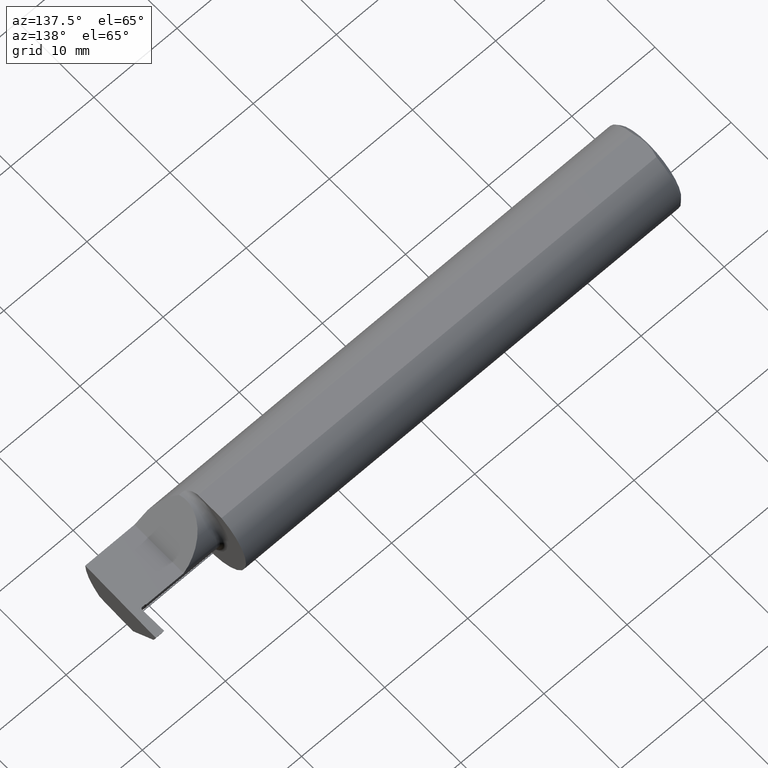
[diagram: clean part render]
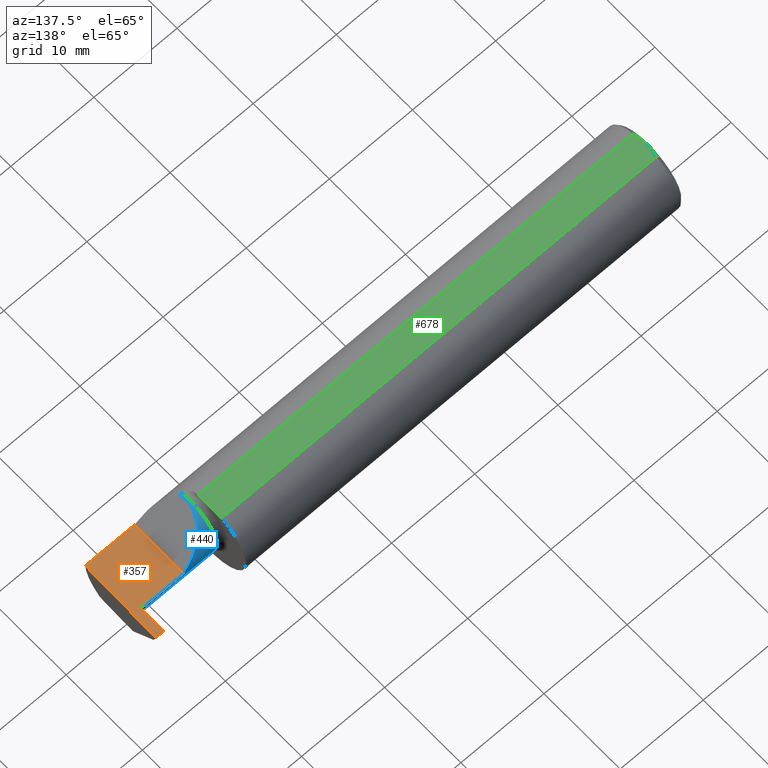
[diagram: same view with three faces highlighted in distinct colors, each labeled with its STEP entity id]
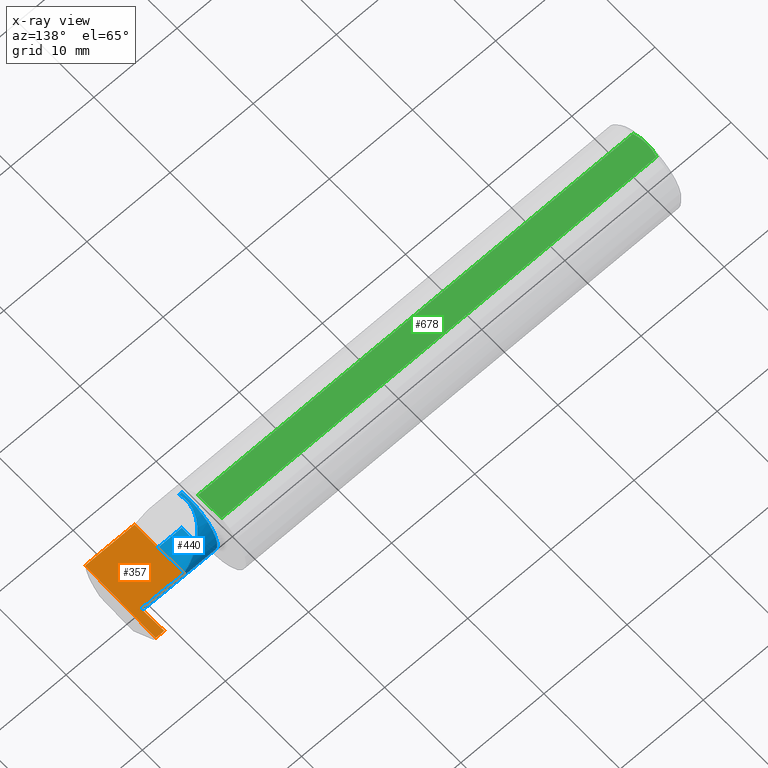
[diagram: x-ray of the same camera — body ghosted, the three highlighted faces saturated]
A machine part, auxiliary view with three faces highlighted in distinct colors.
The next image is the same camera in x-ray (body ghosted, the three faces saturated) — at least one of them is partly hidden behind the body in this view.
Their STEP definitions:

[orange] entity #357 — the highlighted planar face has unit normal (-0, 0, -1).
#25 = CARTESIAN_POINT ( 'NONE',  ( 2.493506715846705468, -0.1873499999999999888, 0.000000000000000000 ) ) ;
#53 = ORIENTED_EDGE ( 'NONE', *, *, #241, .F. ) ;
#70 = VECTOR ( 'NONE', #655, 39.37007874015748143 ) ;
#79 = DIRECTION ( 'NONE',  ( -1.000000000000000000, 0.000000000000000000, 1.224646799147353700E-16 ) ) ;
#83 = VECTOR ( 'NONE', #107, 39.37007874015748143 ) ;
#107 = DIRECTION ( 'NONE',  ( -1.000000000000000000, -0.000000000000000000, -0.000000000000000000 ) ) ;
#128 = CARTESIAN_POINT ( 'NONE',  ( 2.500000000000000000, 0.1846500000000000363, 0.000000000000000000 ) ) ;
#132 = DIRECTION ( 'NONE',  ( -0.01745240643727703073, -0.9998476951563912696, 0.000000000000000000 ) ) ;
#136 = CARTESIAN_POINT ( 'NONE',  ( 2.454971356043562647, 0.06464999999999881952, -4.269731394718441352E-11 ) ) ;
#147 = CARTESIAN_POINT ( 'NONE',  ( 2.461970289910105691, 0.07177216684492265797, -4.912318445998929365E-11 ) ) ;
#150 = AXIS2_PLACEMENT_3D ( 'NONE', #219, #709, #79 ) ;
#164 = VECTOR ( 'NONE', #401, 39.37007874015748143 ) ;
#170 = VERTEX_POINT ( 'NONE', #25 ) ;
#173 = CARTESIAN_POINT ( 'NONE',  ( 2.260000000000000231, -0.2000000000000000111, 2.939152317953647352E-17 ) ) ;
#180 = EDGE_CURVE ( 'NONE', #170, #703, #749, .T. ) ;
#205 = VERTEX_POINT ( 'NONE', #494 ) ;
#207 = CARTESIAN_POINT ( 'NONE',  ( 2.459999999986550723, 0.1846500000000000363, -3.367778697655196529E-19 ) ) ;
#219 = CARTESIAN_POINT ( 'NONE',  ( 2.500000000000000000, -0.2000000000000000111, 0.000000000000000000 ) ) ;
#225 = LINE ( 'NONE', #640, #407 ) ;
#228 = DIRECTION ( 'NONE',  ( 1.000000000000000000, 4.493171042210958884E-17, 0.000000000000000000 ) ) ;
#231 = VERTEX_POINT ( 'NONE', #606 ) ;
#241 = EDGE_CURVE ( 'NONE', #312, #278, #619, .T. ) ;
#261 = B_SPLINE_CURVE_WITH_KNOTS ( 'NONE', 1,
 ( #207, #147 ),
 .UNSPECIFIED., .F., .F.,
 ( 2, 2 ),
 ( 6.219974576484725306E-15, 0.002867533701424602663 ),
 .UNSPECIFIED. ) ;
#278 = VERTEX_POINT ( 'NONE', #128 ) ;
#293 = LINE ( 'NONE', #568, #924 ) ;
#301 = CARTESIAN_POINT ( 'NONE',  ( 2.437999999999999279, 0.06665000000000002867, 8.765184870453653280E-18 ) ) ;
#312 = VERTEX_POINT ( 'NONE', #422 ) ;
#357 = ADVANCED_FACE ( 'NONE', ( #485 ), #763, .F. ) ;
#376 = B_SPLINE_CURVE_WITH_KNOTS ( 'NONE', 1,
 ( #425, #851 ),
 .UNSPECIFIED., .F., .F.,
 ( 2, 2 ),
 ( 0.000000000000000000, 0.0003802724437979021488 ),
 .UNSPECIFIED. ) ;
#400 = CARTESIAN_POINT ( 'NONE',  ( 2.439999999988526902, 0.06464999999898689287, 1.642770382119811973E-10 ) ) ;
#401 = DIRECTION ( 'NONE',  ( 1.000000000000000000, -0.000000000000000000, -0.000000000000000000 ) ) ;
#407 = VECTOR ( 'NONE', #132, 39.37007874015748143 ) ;
#422 = CARTESIAN_POINT ( 'NONE',  ( 2.459999999986550723, 0.1846500000000000363, -3.367778697655196529E-19 ) ) ;
#425 = CARTESIAN_POINT ( 'NONE',  ( 2.454971356043562647, 0.06464999999999881952, -4.269731394718441352E-11 ) ) ;
#435 = EDGE_CURVE ( 'NONE', #703, #231, #728, .T. ) ;
#450 = ORIENTED_EDGE ( 'NONE', *, *, #620, .T. ) ;
#456 = VERTEX_POINT ( 'NONE', #400 ) ;
#467 = CARTESIAN_POINT ( 'NONE',  ( 3.749399456654646757E-32, -0.1873499999999999888, 3.061616997868384127E-16 ) ) ;
#485 = FACE_OUTER_BOUND ( 'NONE', #866, .T. ) ;
#486 = ORIENTED_EDGE ( 'NONE', *, *, #435, .F. ) ;
#494 = CARTESIAN_POINT ( 'NONE',  ( 2.461970289910105691, 0.07177216684492265797, -4.912318445998929365E-11 ) ) ;
#568 = CARTESIAN_POINT ( 'NONE',  ( 2.075000000000000178, 0.06665000000000001479, 5.204748896376252548E-17 ) ) ;
#583 = CARTESIAN_POINT ( 'NONE',  ( 2.439999999988526902, 0.06464999999898689287, 1.642770382119811973E-10 ) ) ;
#591 = CARTESIAN_POINT ( 'NONE',  ( 2.461970289910105691, 0.07177216684492265797, -4.912318445998929365E-11 ) ) ;
#606 = CARTESIAN_POINT ( 'NONE',  ( 2.260000000000000231, 0.06664999999999998703, 2.939152317953647352E-17 ) ) ;
#619 = LINE ( 'NONE', #911, #164 ) ;
#620 = EDGE_CURVE ( 'NONE', #312, #205, #261, .T. ) ;
#640 = CARTESIAN_POINT ( 'NONE',  ( 2.500000000000000000, 0.1846500000000000363, 0.000000000000000000 ) ) ;
#655 = DIRECTION ( 'NONE',  ( -0.000000000000000000, 1.000000000000000000, -0.000000000000000000 ) ) ;
#693 = EDGE_CURVE ( 'NONE', #278, #170, #225, .T. ) ;
#703 = VERTEX_POINT ( 'NONE', #712 ) ;
#706 = B_SPLINE_CURVE_WITH_KNOTS ( 'NONE', 1,
 ( #583, #867 ),
 .UNSPECIFIED., .F., .F.,
 ( 2, 2 ),
 ( 0.000000000000000000, 7.184204878070299546E-05 ),
 .UNSPECIFIED. ) ;
#709 = DIRECTION ( 'NONE',  ( -1.224646799147353700E-16, 0.000000000000000000, -1.000000000000000000 ) ) ;
#712 = CARTESIAN_POINT ( 'NONE',  ( 2.260000000000000231, -0.1873499999999999888, 2.939152317953647352E-17 ) ) ;
#715 = VERTEX_POINT ( 'NONE', #136 ) ;
#719 = EDGE_CURVE ( 'NONE', #231, #903, #293, .T. ) ;
#728 = LINE ( 'NONE', #173, #70 ) ;
#730 = EDGE_CURVE ( 'NONE', #715, #456, #376, .T. ) ;
#733 = CARTESIAN_POINT ( 'NONE',  ( 2.454971356043562647, 0.06464999999999881952, -4.269731394718441352E-11 ) ) ;
#749 = LINE ( 'NONE', #467, #83 ) ;
#763 = PLANE ( 'NONE',  #150 ) ;
#789 = CARTESIAN_POINT ( 'NONE',  ( 2.459128833457473018, 0.06464999999995867108, -4.734315173171690454E-11 ) ) ;
#819 = ORIENTED_EDGE ( 'NONE', *, *, #834, .T. ) ;
#829 = ORIENTED_EDGE ( 'NONE', *, *, #693, .F. ) ;
#834 = EDGE_CURVE ( 'NONE', #205, #715, #894, .T. ) ;
#851 = CARTESIAN_POINT ( 'NONE',  ( 2.439999999988526902, 0.06464999999898689287, 1.642770382119811973E-10 ) ) ;
#853 = ORIENTED_EDGE ( 'NONE', *, *, #730, .T. ) ;
#865 = ORIENTED_EDGE ( 'NONE', *, *, #180, .F. ) ;
#866 = EDGE_LOOP ( 'NONE', ( #865, #829, #53, #450, #819, #853, #887, #897, #486 ) ) ;
#867 = CARTESIAN_POINT ( 'NONE',  ( 2.437999999999999279, 0.06665000000000002867, 8.765184870453653280E-18 ) ) ;
#883 = CARTESIAN_POINT ( 'NONE',  ( 2.462042847893961550, 0.06761532263369834928, -4.817540195324741940E-11 ) ) ;
#887 = ORIENTED_EDGE ( 'NONE', *, *, #915, .T. ) ;
#894 =( BOUNDED_CURVE ( )  B_SPLINE_CURVE ( 3, ( #591, #883, #789, #733 ),
 .UNSPECIFIED., .F., .T. ) 
 B_SPLINE_CURVE_WITH_KNOTS ( ( 4, 4 ),
 ( 6.505213034913027567E-19, 0.0002808519284762538734 ),
 .UNSPECIFIED. ) 
 CURVE ( )  GEOMETRIC_REPRESENTATION_ITEM ( )  RATIONAL_B_SPLINE_CURVE ( ( 1.000000000000000000, 0.8006061761999030413, 0.8006061761999030413, 1.000000000000000000 ) ) 
 REPRESENTATION_ITEM ( '' )  );
#897 = ORIENTED_EDGE ( 'NONE', *, *, #719, .F. ) ;
#903 = VERTEX_POINT ( 'NONE', #301 ) ;
#911 = CARTESIAN_POINT ( 'NONE',  ( 2.399999999999999911, 0.1846500000000000363, -3.367778697655196529E-19 ) ) ;
#915 = EDGE_CURVE ( 'NONE', #456, #903, #706, .T. ) ;
#924 = VECTOR ( 'NONE', #228, 39.37007874015748143 ) ;

[blue] entity #440 — the highlighted cylindrical surface (partial cylindrical patch) has radius 3.81 mm, axis along (-1, -0, -0).
#6 = VERTEX_POINT ( 'NONE', #318 ) ;
#7 = CARTESIAN_POINT ( 'NONE',  ( 2.277499999999999858, -0.1172600179964007477, -0.1461167706989302817 ) ) ;
#28 = LINE ( 'NONE', #873, #102 ) ;
#30 = FACE_OUTER_BOUND ( 'NONE', #215, .T. ) ;
#68 = CARTESIAN_POINT ( 'NONE',  ( 2.100000000000000089, -0.08334999999999996578, 0.000000000000000000 ) ) ;
#99 = CARTESIAN_POINT ( 'NONE',  ( 2.442238177621229855, 0.01877818259013954577, -0.1104401941422843703 ) ) ;
#102 = VECTOR ( 'NONE', #441, 39.37007874015748143 ) ;
#121 = AXIS2_PLACEMENT_3D ( 'NONE', #68, #364, #510 ) ;
#133 = CARTESIAN_POINT ( 'NONE',  ( 2.100000000000000089, -0.1172600179964007477, 0.1461167706989303094 ) ) ;
#171 = CARTESIAN_POINT ( 'NONE',  ( 2.441904550514358174, 0.02678675195050713234, -0.1024442611876131698 ) ) ;
#185 = DIRECTION ( 'NONE',  ( -1.000000000000000000, -4.493171042210958884E-17, -0.000000000000000000 ) ) ;
#212 = CARTESIAN_POINT ( 'NONE',  ( 2.155331797197864940, 0.06664999999999998703, 0.1046682028021360678 ) ) ;
#215 = EDGE_LOOP ( 'NONE', ( #342, #920, #916, #560, #803, #491 ) ) ;
#228 = DIRECTION ( 'NONE',  ( 1.000000000000000000, 4.493171042210958884E-17, 0.000000000000000000 ) ) ;
#231 = VERTEX_POINT ( 'NONE', #606 ) ;
#251 = CARTESIAN_POINT ( 'NONE',  ( 2.443046201255529848, -0.008364411415347820788, -0.1303958719657611065 ) ) ;
#289 = CARTESIAN_POINT ( 'NONE',  ( 2.090221225029928576, -0.01530148607434166606, 0.1697787749700726267 ) ) ;
#292 = VERTEX_POINT ( 'NONE', #133 ) ;
#293 = LINE ( 'NONE', #568, #924 ) ;
#297 = CARTESIAN_POINT ( 'NONE',  ( 2.437999999999999279, 0.06665000000000002867, 8.765184870453653280E-18 ) ) ;
#301 = CARTESIAN_POINT ( 'NONE',  ( 2.437999999999999279, 0.06665000000000002867, 8.765184870453653280E-18 ) ) ;
#306 = CARTESIAN_POINT ( 'NONE',  ( 2.443647039189707826, -0.1172600179964006784, -0.1461167706989303094 ) ) ;
#311 = CARTESIAN_POINT ( 'NONE',  ( 2.443733570786666309, -0.1062136811403287806, -0.1486803469386182575 ) ) ;
#318 = CARTESIAN_POINT ( 'NONE',  ( 2.100000000000000089, -0.1172600179964006784, -0.1461167706989303094 ) ) ;
#319 = CARTESIAN_POINT ( 'NONE',  ( 2.440128188932095821, 0.05660152407038146483, -0.05513071989672232998 ) ) ;
#342 = ORIENTED_EDGE ( 'NONE', *, *, #719, .T. ) ;
#359 = CARTESIAN_POINT ( 'NONE',  ( 2.260000000000000231, 0.06664999999999998703, 2.939152317953647352E-17 ) ) ;
#363 =( BOUNDED_CURVE ( )  B_SPLINE_CURVE ( 3, ( #780, #289, #212, #359 ),
 .UNSPECIFIED., .F., .F. ) 
 B_SPLINE_CURVE_WITH_KNOTS ( ( 4, 4 ),
 ( 6.055147272130142255, 7.853981633974482790 ),
 .UNSPECIFIED. ) 
 CURVE ( )  GEOMETRIC_REPRESENTATION_ITEM ( )  RATIONAL_B_SPLINE_CURVE ( ( 1.000000000000000000, 0.7480442670255268434, 0.7480442670255268434, 1.000000000000000000 ) ) 
 REPRESENTATION_ITEM ( '' )  );
#364 = DIRECTION ( 'NONE',  ( -1.000000000000000000, -4.493171042210958884E-17, -0.000000000000000000 ) ) ;
#371 = CARTESIAN_POINT ( 'NONE',  ( 2.440931591934087930, 0.04684530795329996250, -0.07533264334203870760 ) ) ;
#388 = CARTESIAN_POINT ( 'NONE',  ( 2.442833554690669207, 0.001115449006604786290, -0.1244700368982952360 ) ) ;
#440 = ADVANCED_FACE ( 'NONE', ( #30 ), #458, .T. ) ;
#441 = DIRECTION ( 'NONE',  ( 1.000000000000000000, 4.493171042210958884E-17, 0.000000000000000000 ) ) ;
#451 = CARTESIAN_POINT ( 'NONE',  ( 2.438434870138745936, 0.06665000001257265216, -0.01133157783874540886 ) ) ;
#458 = CYLINDRICAL_SURFACE ( 'NONE', #592, 0.1499999999999999667 ) ;
#461 = CARTESIAN_POINT ( 'NONE',  ( 2.443382066057225188, -0.02860029826593339652, -0.1401013635948224201 ) ) ;
#484 = DIRECTION ( 'NONE',  ( 0.000000000000000000, -1.000000000000000000, 0.000000000000000000 ) ) ;
#491 = ORIENTED_EDGE ( 'NONE', *, *, #665, .T. ) ;
#510 = DIRECTION ( 'NONE',  ( 0.000000000000000000, -1.000000000000000000, 0.000000000000000000 ) ) ;
#523 = CIRCLE ( 'NONE', #121, 0.1499999999999999944 ) ;
#527 = CARTESIAN_POINT ( 'NONE',  ( 2.438837466406815757, 0.06536221517195568709, -0.02262142833223964450 ) ) ;
#559 = B_SPLINE_CURVE_WITH_KNOTS ( 'NONE', 3,
 ( #297, #451, #527, #809, #319, #371, #804, #171, #99, #388, #251, #461, #598, #579, #649, #863, #311, #306 ),
 .UNSPECIFIED., .F., .F.,
 ( 4, 2, 2, 2, 2, 2, 2, 2, 4 ),
 ( 4.211144306989789091E-12, 0.0008601682351884683319, 0.001720336466165792210, 0.002580504697143116630, 0.003440672928120440399, 0.004300841159097764169, 0.005161009390075088805, 0.006021177621052412575, 0.006881345852029736344 ),
 .UNSPECIFIED. ) ;
#560 = ORIENTED_EDGE ( 'NONE', *, *, #747, .F. ) ;
#568 = CARTESIAN_POINT ( 'NONE',  ( 2.075000000000000178, 0.06665000000000001479, 5.204748896376252548E-17 ) ) ;
#579 = CARTESIAN_POINT ( 'NONE',  ( 2.443759016412387020, -0.06120540515717897562, -0.1487771738941279509 ) ) ;
#592 = AXIS2_PLACEMENT_3D ( 'NONE', #734, #185, #484 ) ;
#598 = CARTESIAN_POINT ( 'NONE',  ( 2.443526505352144884, -0.03939163170913546896, -0.1438495478264739946 ) ) ;
#606 = CARTESIAN_POINT ( 'NONE',  ( 2.260000000000000231, 0.06664999999999998703, 2.939152317953647352E-17 ) ) ;
#629 = VERTEX_POINT ( 'NONE', #854 ) ;
#649 = CARTESIAN_POINT ( 'NONE',  ( 2.443815344807681367, -0.07244319703336375704, -0.1500290047513198055 ) ) ;
#654 = CARTESIAN_POINT ( 'NONE',  ( 2.443647039189707826, -0.1172600179964006784, -0.1461167706989303094 ) ) ;
#665 = EDGE_CURVE ( 'NONE', #629, #231, #363, .T. ) ;
#702 = VECTOR ( 'NONE', #727, 39.37007874015748143 ) ;
#719 = EDGE_CURVE ( 'NONE', #231, #903, #293, .T. ) ;
#727 = DIRECTION ( 'NONE',  ( -1.000000000000000000, -4.493171042210958884E-17, -0.000000000000000000 ) ) ;
#734 = CARTESIAN_POINT ( 'NONE',  ( 2.075000000000000178, -0.08334999999999996578, 0.000000000000000000 ) ) ;
#747 = EDGE_CURVE ( 'NONE', #292, #6, #523, .T. ) ;
#780 = CARTESIAN_POINT ( 'NONE',  ( 2.113883229301070532, -0.1172600179964006645, 0.1461167706989302539 ) ) ;
#803 = ORIENTED_EDGE ( 'NONE', *, *, #885, .T. ) ;
#804 = CARTESIAN_POINT ( 'NONE',  ( 2.441258951838661595, 0.04075339827323605502, -0.08498986596952599892 ) ) ;
#809 = CARTESIAN_POINT ( 'NONE',  ( 2.439687465777452324, 0.06031148358191452952, -0.04459181647100731588 ) ) ;
#818 = EDGE_CURVE ( 'NONE', #903, #841, #559, .T. ) ;
#841 = VERTEX_POINT ( 'NONE', #654 ) ;
#844 = EDGE_CURVE ( 'NONE', #841, #6, #878, .T. ) ;
#854 = CARTESIAN_POINT ( 'NONE',  ( 2.113883229301070532, -0.1172600179964006645, 0.1461167706989302539 ) ) ;
#863 = CARTESIAN_POINT ( 'NONE',  ( 2.443789578362918657, -0.09504051956460067563, -0.1499699715607569483 ) ) ;
#873 = CARTESIAN_POINT ( 'NONE',  ( 2.277499999999999858, -0.1172600179964007477, 0.1461167706989302817 ) ) ;
#878 = LINE ( 'NONE', #7, #702 ) ;
#885 = EDGE_CURVE ( 'NONE', #292, #629, #28, .T. ) ;
#903 = VERTEX_POINT ( 'NONE', #301 ) ;
#916 = ORIENTED_EDGE ( 'NONE', *, *, #844, .T. ) ;
#920 = ORIENTED_EDGE ( 'NONE', *, *, #818, .T. ) ;
#924 = VECTOR ( 'NONE', #228, 39.37007874015748143 ) ;

[green] entity #678 — the highlighted planar face has unit normal (0, -0, 1).
#22 = ORIENTED_EDGE ( 'NONE', *, *, #630, .T. ) ;
#24 = B_SPLINE_CURVE_WITH_KNOTS ( 'NONE', 3,
 ( #828, #677, #768, #208, #38, #260 ),
 .UNSPECIFIED., .F., .F.,
 ( 4, 2, 4 ),
 ( 0.005750933109916887831, 0.006521788775031543001, 0.007292644440146199038 ),
 .UNSPECIFIED. ) ;
#34 = CARTESIAN_POINT ( 'NONE',  ( 0.000000000000000000, -0.06039039658753697637, 0.1773499999999999799 ) ) ;
#38 = CARTESIAN_POINT ( 'NONE',  ( 0.01186375298701897348, -0.05066077215909271098, 0.1773499999999999799 ) ) ;
#55 = CARTESIAN_POINT ( 'NONE',  ( 2.500000000000000000, -0.1873500000000000165, 0.1773499999999999799 ) ) ;
#62 = VERTEX_POINT ( 'NONE', #464 ) ;
#94 = CARTESIAN_POINT ( 'NONE',  ( 0.004999999999999835305, 2.941982542510190671E-17, 0.1773499999999999799 ) ) ;
#139 = CARTESIAN_POINT ( 'NONE',  ( 2.075000000000000178, -0.1873500000000000443, 0.1773499999999999799 ) ) ;
#189 = EDGE_CURVE ( 'NONE', #62, #792, #398, .T. ) ;
#190 = CARTESIAN_POINT ( 'NONE',  ( 0.01499999999999756042, 0.06039039658754215278, 0.1773499999999999799 ) ) ;
#208 = CARTESIAN_POINT ( 'NONE',  ( 0.009318557230853204490, -0.04061090184993776386, 0.1773499999999999799 ) ) ;
#216 = VECTOR ( 'NONE', #323, 39.37007874015748143 ) ;
#260 = CARTESIAN_POINT ( 'NONE',  ( 0.01499999999999999944, -0.06039039658753697637, 0.1773499999999999799 ) ) ;
#273 = EDGE_CURVE ( 'NONE', #835, #62, #24, .T. ) ;
#276 = CARTESIAN_POINT ( 'NONE',  ( 0.01185291896084217714, 0.05062716160312498437, 0.1773499999999999521 ) ) ;
#323 = DIRECTION ( 'NONE',  ( 1.000000000000000000, 0.000000000000000000, 0.000000000000000000 ) ) ;
#368 = FACE_OUTER_BOUND ( 'NONE', #586, .T. ) ;
#387 = ORIENTED_EDGE ( 'NONE', *, *, #647, .T. ) ;
#398 = LINE ( 'NONE', #34, #216 ) ;
#415 = ORIENTED_EDGE ( 'NONE', *, *, #189, .T. ) ;
#437 = PLANE ( 'NONE',  #801 ) ;
#464 = CARTESIAN_POINT ( 'NONE',  ( 0.01499999999999999944, -0.06039039658753697637, 0.1773499999999999799 ) ) ;
#493 = DIRECTION ( 'NONE',  ( 0.000000000000000000, -0.000000000000000000, 1.000000000000000000 ) ) ;
#501 = CARTESIAN_POINT ( 'NONE',  ( 0.005916828623699125177, 0.02060071390057613763, 0.1773499999999999799 ) ) ;
#504 = EDGE_CURVE ( 'NONE', #686, #520, #889, .T. ) ;
#520 = VERTEX_POINT ( 'NONE', #190 ) ;
#553 = CARTESIAN_POINT ( 'NONE',  ( 0.000000000000000000, 0.06039039658753697637, 0.1773499999999999799 ) ) ;
#557 = CARTESIAN_POINT ( 'NONE',  ( 0.009346310357820472939, 0.04072930668827419443, 0.1773500000000000354 ) ) ;
#561 = CARTESIAN_POINT ( 'NONE',  ( 2.075000000000000178, -0.06039039658753699025, 0.1773499999999999799 ) ) ;
#586 = EDGE_LOOP ( 'NONE', ( #415, #387, #770, #22, #651 ) ) ;
#623 = CARTESIAN_POINT ( 'NONE',  ( 0.004999999999999835305, 2.941982542510190671E-17, 0.1773499999999999799 ) ) ;
#630 = EDGE_CURVE ( 'NONE', #520, #835, #869, .T. ) ;
#631 = DIRECTION ( 'NONE',  ( -4.493171042210958884E-17, 1.000000000000000000, 0.000000000000000000 ) ) ;
#647 = EDGE_CURVE ( 'NONE', #792, #686, #772, .T. ) ;
#651 = ORIENTED_EDGE ( 'NONE', *, *, #273, .T. ) ;
#677 = CARTESIAN_POINT ( 'NONE',  ( 0.004999999999999833571, -0.01026662907944655458, 0.1773499999999999521 ) ) ;
#678 = ADVANCED_FACE ( 'NONE', ( #368 ), #437, .T. ) ;
#683 = VECTOR ( 'NONE', #631, 39.37007874015748143 ) ;
#686 = VERTEX_POINT ( 'NONE', #708 ) ;
#708 = CARTESIAN_POINT ( 'NONE',  ( 2.075000000000000178, 0.06039039658754216666, 0.1773499999999999799 ) ) ;
#716 = DIRECTION ( 'NONE',  ( 1.000000000000000000, 0.000000000000000000, -0.000000000000000000 ) ) ;
#768 = CARTESIAN_POINT ( 'NONE',  ( 0.005896899252109314912, -0.02043863390046160924, 0.1773500000000000354 ) ) ;
#770 = ORIENTED_EDGE ( 'NONE', *, *, #504, .T. ) ;
#772 = LINE ( 'NONE', #139, #683 ) ;
#792 = VERTEX_POINT ( 'NONE', #561 ) ;
#801 = AXIS2_PLACEMENT_3D ( 'NONE', #55, #493, #716 ) ;
#823 = DIRECTION ( 'NONE',  ( -1.000000000000000000, -0.000000000000000000, -0.000000000000000000 ) ) ;
#828 = CARTESIAN_POINT ( 'NONE',  ( 0.004999999999999835305, 2.941982542510190671E-17, 0.1773499999999999799 ) ) ;
#835 = VERTEX_POINT ( 'NONE', #94 ) ;
#869 = B_SPLINE_CURVE_WITH_KNOTS ( 'NONE', 3,
 ( #913, #276, #557, #501, #929, #623 ),
 .UNSPECIFIED., .F., .F.,
 ( 4, 2, 4 ),
 ( 0.004207325536406422359, 0.004979129323161655095, 0.005750933109916887831 ),
 .UNSPECIFIED. ) ;
#877 = VECTOR ( 'NONE', #823, 39.37007874015748143 ) ;
#889 = LINE ( 'NONE', #553, #877 ) ;
#913 = CARTESIAN_POINT ( 'NONE',  ( 0.01499999999999756042, 0.06039039658754215278, 0.1773499999999999799 ) ) ;
#929 = CARTESIAN_POINT ( 'NONE',  ( 0.004999999999999839642, 0.01027925662263861305, 0.1773499999999999799 ) ) ;